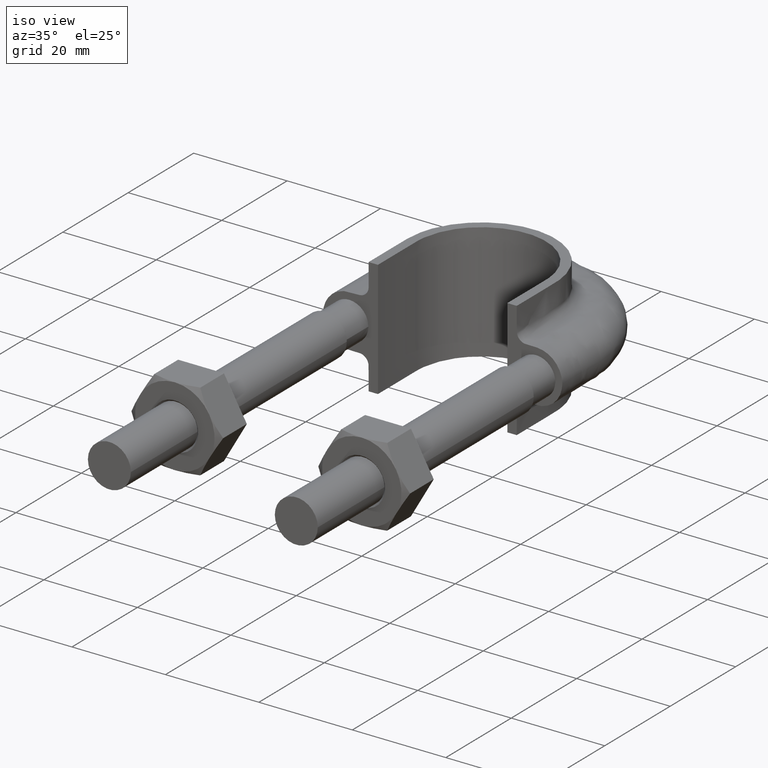
[diagram: clean part render]
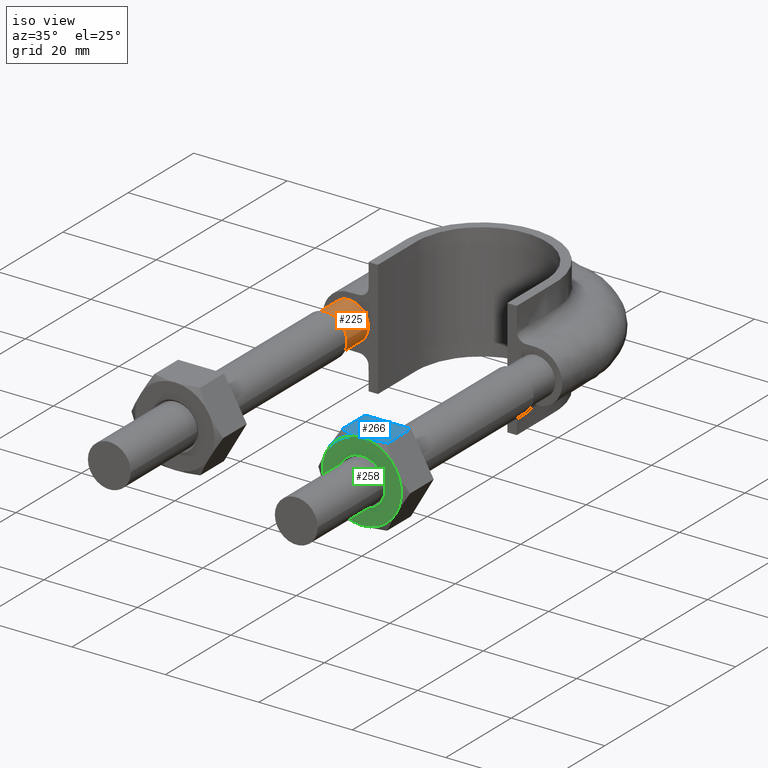
[diagram: same view with three faces highlighted in distinct colors, each labeled with its STEP entity id]
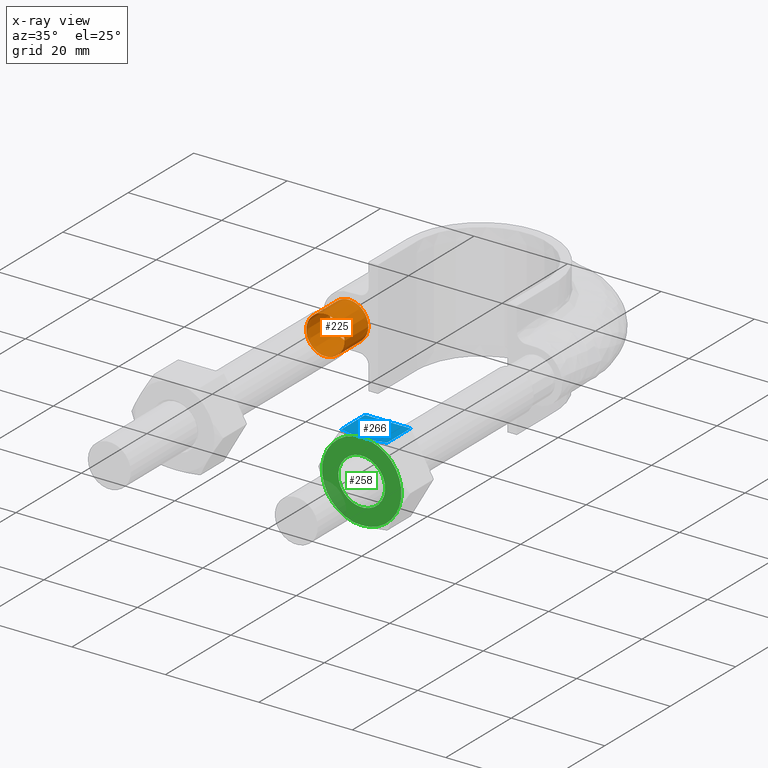
[diagram: x-ray of the same camera — body ghosted, the three highlighted faces saturated]
A machine part, iso view with three faces highlighted in distinct colors.
The next image is the same camera in x-ray (body ghosted, the three faces saturated) — at least one of them is partly hidden behind the body in this view.
Their STEP definitions:

[orange] entity #225 — the highlighted face is a SurfaceOfExtrusion surface.
#225 = ADVANCED_FACE( '', ( #293, #294 ), #295, .F. );
#293 = FACE_OUTER_BOUND( '', #990, .T. );
#294 = FACE_OUTER_BOUND( '', #991, .T. );
#295 = SURFACE_OF_LINEAR_EXTRUSION( '', #992, #993 );
#990 = EDGE_LOOP( '', ( #1333 ) );
#991 = EDGE_LOOP( '', ( #1334 ) );
#992 = B_SPLINE_CURVE_WITH_KNOTS( '', 3, ( #1335, #1336, #1337, #1338, #1339, #1340, #1341, #1342, #1343, #1344 ), .UNSPECIFIED., .T., .F., ( 4, 1, 1, 1, 1, 1, 1, 4 ), ( -1.00000000000000, -0.857142857142857, -0.714285714285714, -0.571428571428571, -0.428571428571429, -0.285714285714286, -0.142857142857143, 0.000000000000000 ), .UNSPECIFIED. );
#993 = VECTOR( '', #1345, 1000.00000000000 );
#1333 = ORIENTED_EDGE( '', *, *, #1747, .T. );
#1334 = ORIENTED_EDGE( '', *, *, #1748, .F. );
#1335 = CARTESIAN_POINT( '', ( -15.9000000000000, 39.0000000000000, 4.33680868994202E-016 ) );
#1336 = CARTESIAN_POINT( '', ( -15.9000000000000, 39.0000000000000, 1.22184926194408 ) );
#1337 = CARTESIAN_POINT( '', ( -17.0768231851220, 39.0000000000000, 3.66554778583225 ) );
#1338 = CARTESIAN_POINT( '', ( -21.0432697263483, 39.0000000000000, 4.57086332538454 ) );
#1339 = CARTESIAN_POINT( '', ( -24.2241128848102, 39.0000000000000, 2.03422555230246 ) );
#1340 = CARTESIAN_POINT( '', ( -24.2241128848102, 39.0000000000000, -2.03422555230246 ) );
#1341 = CARTESIAN_POINT( '', ( -21.0432697263483, 39.0000000000000, -4.57086332538454 ) );
#1342 = CARTESIAN_POINT( '', ( -17.0768231851220, 39.0000000000000, -3.66554778583225 ) );
#1343 = CARTESIAN_POINT( '', ( -15.9000000000000, 39.0000000000000, -1.22184926194408 ) );
#1344 = CARTESIAN_POINT( '', ( -15.9000000000000, 39.0000000000000, 4.33680868994202E-016 ) );
#1345 = DIRECTION( '', ( 1.22460635382238E-016, 1.00000000000000, 0.000000000000000 ) );
#1747 = EDGE_CURVE( '', #1879, #1879, #1880, .T. );
#1748 = EDGE_CURVE( '', #1881, #1881, #1882, .T. );
#1879 = VERTEX_POINT( '', #2221 );
#1880 = B_SPLINE_CURVE_WITH_KNOTS( '', 3, ( #2222, #2223, #2224, #2225, #2226, #2227, #2228, #2229, #2230, #2231 ), .UNSPECIFIED., .T., .F., ( 4, 1, 1, 1, 1, 1, 1, 4 ), ( -1.00000000000000, -0.857142857142857, -0.714285714285714, -0.571428571428571, -0.428571428571429, -0.285714285714286, -0.142857142857143, 0.000000000000000 ), .UNSPECIFIED. );
#1881 = VERTEX_POINT( '', #2232 );
#1882 = B_SPLINE_CURVE_WITH_KNOTS( '', 3, ( #2233, #2234, #2235, #2236, #2237, #2238, #2239, #2240, #2241, #2242 ), .UNSPECIFIED., .T., .F., ( 4, 1, 1, 1, 1, 1, 1, 4 ), ( -1.00000000000000, -0.857142857142857, -0.714285714285714, -0.571428571428571, -0.428571428571429, -0.285714285714286, -0.142857142857143, 0.000000000000000 ), .UNSPECIFIED. );
#2221 = CARTESIAN_POINT( '', ( -15.9000000000000, 73.3000000000000, 4.33680868994202E-016 ) );
#2222 = CARTESIAN_POINT( '', ( -15.9000000000000, 73.3000000000000, 4.33680868994202E-016 ) );
#2223 = CARTESIAN_POINT( '', ( -15.9000000000000, 73.3000000000000, 1.22184926194408 ) );
#2224 = CARTESIAN_POINT( '', ( -17.0768231851219, 73.3000000000000, 3.66554778583225 ) );
#2225 = CARTESIAN_POINT( '', ( -21.0432697263483, 73.3000000000000, 4.57086332538454 ) );
#2226 = CARTESIAN_POINT( '', ( -24.2241128848102, 73.3000000000000, 2.03422555230246 ) );
#2227 = CARTESIAN_POINT( '', ( -24.2241128848102, 73.3000000000000, -2.03422555230246 ) );
#2228 = CARTESIAN_POINT( '', ( -21.0432697263483, 73.3000000000000, -4.57086332538454 ) );
#2229 = CARTESIAN_POINT( '', ( -17.0768231851219, 73.3000000000000, -3.66554778583225 ) );
#2230 = CARTESIAN_POINT( '', ( -15.9000000000000, 73.3000000000000, -1.22184926194408 ) );
#2231 = CARTESIAN_POINT( '', ( -15.9000000000000, 73.3000000000000, 4.33680868994202E-016 ) );
#2232 = CARTESIAN_POINT( '', ( -15.9000000000000, 66.0000000000000, 4.33680868994202E-016 ) );
#2233 = CARTESIAN_POINT( '', ( -15.9000000000000, 66.0000000000000, 4.33680868994202E-016 ) );
#2234 = CARTESIAN_POINT( '', ( -15.9000000000000, 66.0000000000000, 1.22184926194408 ) );
#2235 = CARTESIAN_POINT( '', ( -17.0768231851220, 66.0000000000000, 3.66554778583225 ) );
#2236 = CARTESIAN_POINT( '', ( -21.0432697263483, 66.0000000000000, 4.57086332538454 ) );
#2237 = CARTESIAN_POINT( '', ( -24.2241128848102, 66.0000000000000, 2.03422555230246 ) );
#2238 = CARTESIAN_POINT( '', ( -24.2241128848102, 66.0000000000000, -2.03422555230246 ) );
#2239 = CARTESIAN_POINT( '', ( -21.0432697263483, 66.0000000000000, -4.57086332538454 ) );
#2240 = CARTESIAN_POINT( '', ( -17.0768231851220, 66.0000000000000, -3.66554778583225 ) );
#2241 = CARTESIAN_POINT( '', ( -15.9000000000000, 66.0000000000000, -1.22184926194408 ) );
#2242 = CARTESIAN_POINT( '', ( -15.9000000000000, 66.0000000000000, 4.33680868994202E-016 ) );

[blue] entity #266 — the highlighted planar face has unit normal (-0, 0, -1).
#266 = ADVANCED_FACE( '', ( #389 ), #390, .F. );
#389 = FACE_OUTER_BOUND( '', #1247, .T. );
#390 = PLANE( '', #1248 );
#1247 = EDGE_LOOP( '', ( #1640, #1641, #1642, #1643, #1644 ) );
#1248 = AXIS2_PLACEMENT_3D( '', #1645, #1646, #1647 );
#1640 = ORIENTED_EDGE( '', *, *, #1845, .F. );
#1641 = ORIENTED_EDGE( '', *, *, #1840, .F. );
#1642 = ORIENTED_EDGE( '', *, *, #1846, .F. );
#1643 = ORIENTED_EDGE( '', *, *, #1832, .F. );
#1644 = ORIENTED_EDGE( '', *, *, #1847, .F. );
#1645 = CARTESIAN_POINT( '', ( 15.0925227118886, 27.9999999999975, 8.49999999999934 ) );
#1646 = DIRECTION( '', ( -1.39344090366077E-026, 6.12303176911188E-017, -1.00000000000000 ) );
#1647 = DIRECTION( '', ( -1.00000000000000, 4.89842541528951E-016, 1.39344390298221E-026 ) );
#1832 = EDGE_CURVE( '', #2026, #2028, #2029, .T. );
#1840 = EDGE_CURVE( '', #2040, #1989, #2042, .T. );
#1845 = EDGE_CURVE( '', #1989, #2047, #2048, .T. );
#1846 = EDGE_CURVE( '', #2028, #2040, #2049, .F. );
#1847 = EDGE_CURVE( '', #2047, #2026, #2050, .T. );
#1989 = VERTEX_POINT( '', #2465 );
#2026 = VERTEX_POINT( '', #2520 );
#2028 = VERTEX_POINT( '', #2522 );
#2029 = LINE( '', #2523, #2524 );
#2040 = VERTEX_POINT( '', #2545 );
#2042 = B_SPLINE_CURVE_WITH_KNOTS( '', 3, ( #2547, #2548, #2549, #2550, #2551, #2552 ), .UNSPECIFIED., .F., .F., ( 4, 2, 4 ), ( 4.83064900408855E-007, 0.00246777364959018, 0.00493506423427996 ), .UNSPECIFIED. );
#2047 = VERTEX_POINT( '', #2569 );
#2048 = B_SPLINE_CURVE_WITH_KNOTS( '', 3, ( #2570, #2571, #2572, #2573, #2574, #2575, #2576, #2577 ), .UNSPECIFIED., .F., .F., ( 4, 2, 2, 4 ), ( 0.00493506423427996, 0.00616384870526193, 0.00739263317624390, 0.00985020211820782 ), .UNSPECIFIED. );
#2049 = LINE( '', #2578, #2579 );
#2050 = LINE( '', #2580, #2581 );
#2465 = CARTESIAN_POINT( '', ( 20.0000000000000, 20.0000000000000, 8.49999999999801 ) );
#2520 = CARTESIAN_POINT( '', ( 15.1225006406975, 27.9999999999975, 8.49999999999933 ) );
#2522 = CARTESIAN_POINT( '', ( 24.8774993593025, 27.9999999999975, 8.49999999999669 ) );
#2523 = CARTESIAN_POINT( '', ( 24.8999999999996, 27.9999999999975, 8.49999999999669 ) );
#2524 = VECTOR( '', #2770, 1000.00000000013 );
#2545 = CARTESIAN_POINT( '', ( 24.8774993593025, 20.7505553499463, 8.49999999999670 ) );
#2547 = CARTESIAN_POINT( '', ( 24.8774993593024, 20.7505553499471, 8.49999999999934 ) );
#2548 = CARTESIAN_POINT( '', ( 24.0793946307407, 20.5212203171284, 8.49999999999934 ) );
#2549 = CARTESIAN_POINT( '', ( 23.2755256942569, 20.3324525365447, 8.49999999999934 ) );
#2550 = CARTESIAN_POINT( '', ( 21.6512346174557, 20.0714148540592, 8.49999999999934 ) );
#2551 = CARTESIAN_POINT( '', ( 20.8306909832417, 20.0000000000006, 8.49999999999934 ) );
#2552 = CARTESIAN_POINT( '', ( 19.9999999999999, 20.0000000000006, 8.49999999999934 ) );
#2569 = CARTESIAN_POINT( '', ( 15.1225006406975, 20.7505553499463, 8.49999999999933 ) );
#2570 = CARTESIAN_POINT( '', ( 19.9999999999999, 20.0000000000006, 8.49999999999934 ) );
#2571 = CARTESIAN_POINT( '', ( 19.5862910567866, 20.0000000000007, 8.49999999999934 ) );
#2572 = CARTESIAN_POINT( '', ( 19.1705130745727, 20.0177112081770, 8.49999999999934 ) );
#2573 = CARTESIAN_POINT( '', ( 18.3480000229779, 20.0863021936219, 8.49999999999934 ) );
#2574 = CARTESIAN_POINT( '', ( 17.9394776662172, 20.1371116504200, 8.49999999999934 ) );
#2575 = CARTESIAN_POINT( '', ( 16.7211308743334, 20.3331494013919, 8.49999999999934 ) );
#2576 = CARTESIAN_POINT( '', ( 15.9184999349112, 20.5218253127361, 8.49999999999933 ) );
#2577 = CARTESIAN_POINT( '', ( 15.1225006406976, 20.7505553499471, 8.49999999999934 ) );
#2578 = CARTESIAN_POINT( '', ( 24.8774993593025, 27.9999999999975, 8.49999999999670 ) );
#2579 = VECTOR( '', #2785, 999.999999999896 );
#2580 = CARTESIAN_POINT( '', ( 15.1225006406975, 27.9999999999975, 8.49999999999933 ) );
#2581 = VECTOR( '', #2786, 999.999999999896 );
#2770 = DIRECTION( '', ( 1.00000000000000, -4.89842541528934E-016, -2.69950728437572E-013 ) );
#2785 = DIRECTION( '', ( 4.89842541528951E-016, 1.00000000000000, 6.12303176911188E-017 ) );
#2786 = DIRECTION( '', ( 4.89842541528951E-016, 1.00000000000000, 6.12303176911188E-017 ) );

[green] entity #258 — the highlighted planar face has unit normal (0, 1, 0).
#258 = ADVANCED_FACE( '', ( #371, #372 ), #373, .F. );
#371 = FACE_OUTER_BOUND( '', #1229, .T. );
#372 = FACE_BOUND( '', #1230, .T. );
#373 = PLANE( '', #1231 );
#1229 = EDGE_LOOP( '', ( #1569, #1570, #1571, #1572, #1573, #1574 ) );
#1230 = EDGE_LOOP( '', ( #1575 ) );
#1231 = AXIS2_PLACEMENT_3D( '', #1576, #1577, #1578 );
#1569 = ORIENTED_EDGE( '', *, *, #1811, .F. );
#1570 = ORIENTED_EDGE( '', *, *, #1812, .F. );
#1571 = ORIENTED_EDGE( '', *, *, #1813, .F. );
#1572 = ORIENTED_EDGE( '', *, *, #1814, .F. );
#1573 = ORIENTED_EDGE( '', *, *, #1809, .F. );
#1574 = ORIENTED_EDGE( '', *, *, #1815, .F. );
#1575 = ORIENTED_EDGE( '', *, *, #1816, .T. );
#1576 = CARTESIAN_POINT( '', ( 20.0000000000000, 20.0000000000000, -2.44921270764399E-016 ) );
#1577 = DIRECTION( '', ( 4.89842541528951E-016, 1.00000000000000, 6.12303176911189E-017 ) );
#1578 = DIRECTION( '', ( -0.866025403784371, 3.93600925972806E-016, 0.500000000000117 ) );
#1809 = EDGE_CURVE( '', #1984, #1986, #1987, .T. );
#1811 = EDGE_CURVE( '', #1989, #1990, #1991, .T. );
#1812 = EDGE_CURVE( '', #1992, #1989, #1993, .T. );
#1813 = EDGE_CURVE( '', #1994, #1992, #1995, .T. );
#1814 = EDGE_CURVE( '', #1986, #1994, #1996, .T. );
#1815 = EDGE_CURVE( '', #1990, #1984, #1997, .T. );
#1816 = EDGE_CURVE( '', #1998, #1998, #1999, .T. );
#1984 = VERTEX_POINT( '', #2448 );
#1986 = VERTEX_POINT( '', #2455 );
#1987 = CIRCLE( '', #2456, 8.50000000000000 );
#1989 = VERTEX_POINT( '', #2465 );
#1990 = VERTEX_POINT( '', #2466 );
#1991 = CIRCLE( '', #2467, 8.50000000000000 );
#1992 = VERTEX_POINT( '', #2468 );
#1993 = CIRCLE( '', #2469, 8.50000000000000 );
#1994 = VERTEX_POINT( '', #2470 );
#1995 = CIRCLE( '', #2471, 8.50000000000000 );
#1996 = CIRCLE( '', #2472, 8.50000000000000 );
#1997 = CIRCLE( '', #2473, 8.50000000000000 );
#1998 = VERTEX_POINT( '', #2474 );
#1999 = CIRCLE( '', #2475, 5.00000000000000 );
#2448 = CARTESIAN_POINT( '', ( 27.3612159321672, 20.0000000000000, -4.25000000000099 ) );
#2455 = CARTESIAN_POINT( '', ( 20.0000000000000, 20.0000000000000, -8.49999999999801 ) );
#2456 = AXIS2_PLACEMENT_3D( '', #2722, #2723, #2724 );
#2465 = CARTESIAN_POINT( '', ( 20.0000000000000, 20.0000000000000, 8.49999999999801 ) );
#2466 = CARTESIAN_POINT( '', ( 27.3612159321672, 20.0000000000000, 4.24999999999702 ) );
#2467 = AXIS2_PLACEMENT_3D( '', #2725, #2726, #2727 );
#2468 = CARTESIAN_POINT( '', ( 12.6387840678329, 20.0000000000000, 4.25000000000099 ) );
#2469 = AXIS2_PLACEMENT_3D( '', #2728, #2729, #2730 );
#2470 = CARTESIAN_POINT( '', ( 12.6387840678329, 20.0000000000000, -4.24999999999702 ) );
#2471 = AXIS2_PLACEMENT_3D( '', #2731, #2732, #2733 );
#2472 = AXIS2_PLACEMENT_3D( '', #2734, #2735, #2736 );
#2473 = AXIS2_PLACEMENT_3D( '', #2737, #2738, #2739 );
#2474 = CARTESIAN_POINT( '', ( 15.6698729810781, 20.0000000000000, 2.50000000000058 ) );
#2475 = AXIS2_PLACEMENT_3D( '', #2740, #2741, #2742 );
#2722 = CARTESIAN_POINT( '', ( 20.0000000000000, 20.0000000000000, -2.44921270764399E-016 ) );
#2723 = DIRECTION( '', ( 4.89842541528951E-016, 1.00000000000000, 6.12303176911188E-017 ) );
#2724 = DIRECTION( '', ( -0.866025403784371, 3.93600925972806E-016, 0.500000000000117 ) );
#2725 = CARTESIAN_POINT( '', ( 20.0000000000000, 20.0000000000000, -2.44921270764399E-016 ) );
#2726 = DIRECTION( '', ( 4.89842541528951E-016, 1.00000000000000, 6.12303176911188E-017 ) );
#2727 = DIRECTION( '', ( -0.866025403784371, 3.93600925972806E-016, 0.500000000000117 ) );
#2728 = CARTESIAN_POINT( '', ( 20.0000000000000, 20.0000000000000, -2.44921270764399E-016 ) );
#2729 = DIRECTION( '', ( 4.89842541528951E-016, 1.00000000000000, 6.12303176911188E-017 ) );
#2730 = DIRECTION( '', ( -0.866025403784371, 3.93600925972806E-016, 0.500000000000117 ) );
#2731 = CARTESIAN_POINT( '', ( 20.0000000000000, 20.0000000000000, -2.44921270764399E-016 ) );
#2732 = DIRECTION( '', ( 4.89842541528951E-016, 1.00000000000000, 6.12303176911188E-017 ) );
#2733 = DIRECTION( '', ( -0.866025403784371, 3.93600925972806E-016, 0.500000000000117 ) );
#2734 = CARTESIAN_POINT( '', ( 20.0000000000000, 20.0000000000000, -2.44921270764399E-016 ) );
#2735 = DIRECTION( '', ( 4.89842541528951E-016, 1.00000000000000, 6.12303176911188E-017 ) );
#2736 = DIRECTION( '', ( -0.866025403784371, 3.93600925972806E-016, 0.500000000000117 ) );
#2737 = CARTESIAN_POINT( '', ( 20.0000000000000, 20.0000000000000, -2.44921270764399E-016 ) );
#2738 = DIRECTION( '', ( 4.89842541528951E-016, 1.00000000000000, 6.12303176911188E-017 ) );
#2739 = DIRECTION( '', ( -0.866025403784371, 3.93600925972806E-016, 0.500000000000117 ) );
#2740 = CARTESIAN_POINT( '', ( 20.0000000000000, 20.0000000000000, -2.44921270764399E-016 ) );
#2741 = DIRECTION( '', ( 4.89842541528951E-016, 1.00000000000000, 6.12303176911188E-017 ) );
#2742 = DIRECTION( '', ( -0.866025403784371, 3.93600925972806E-016, 0.500000000000117 ) );